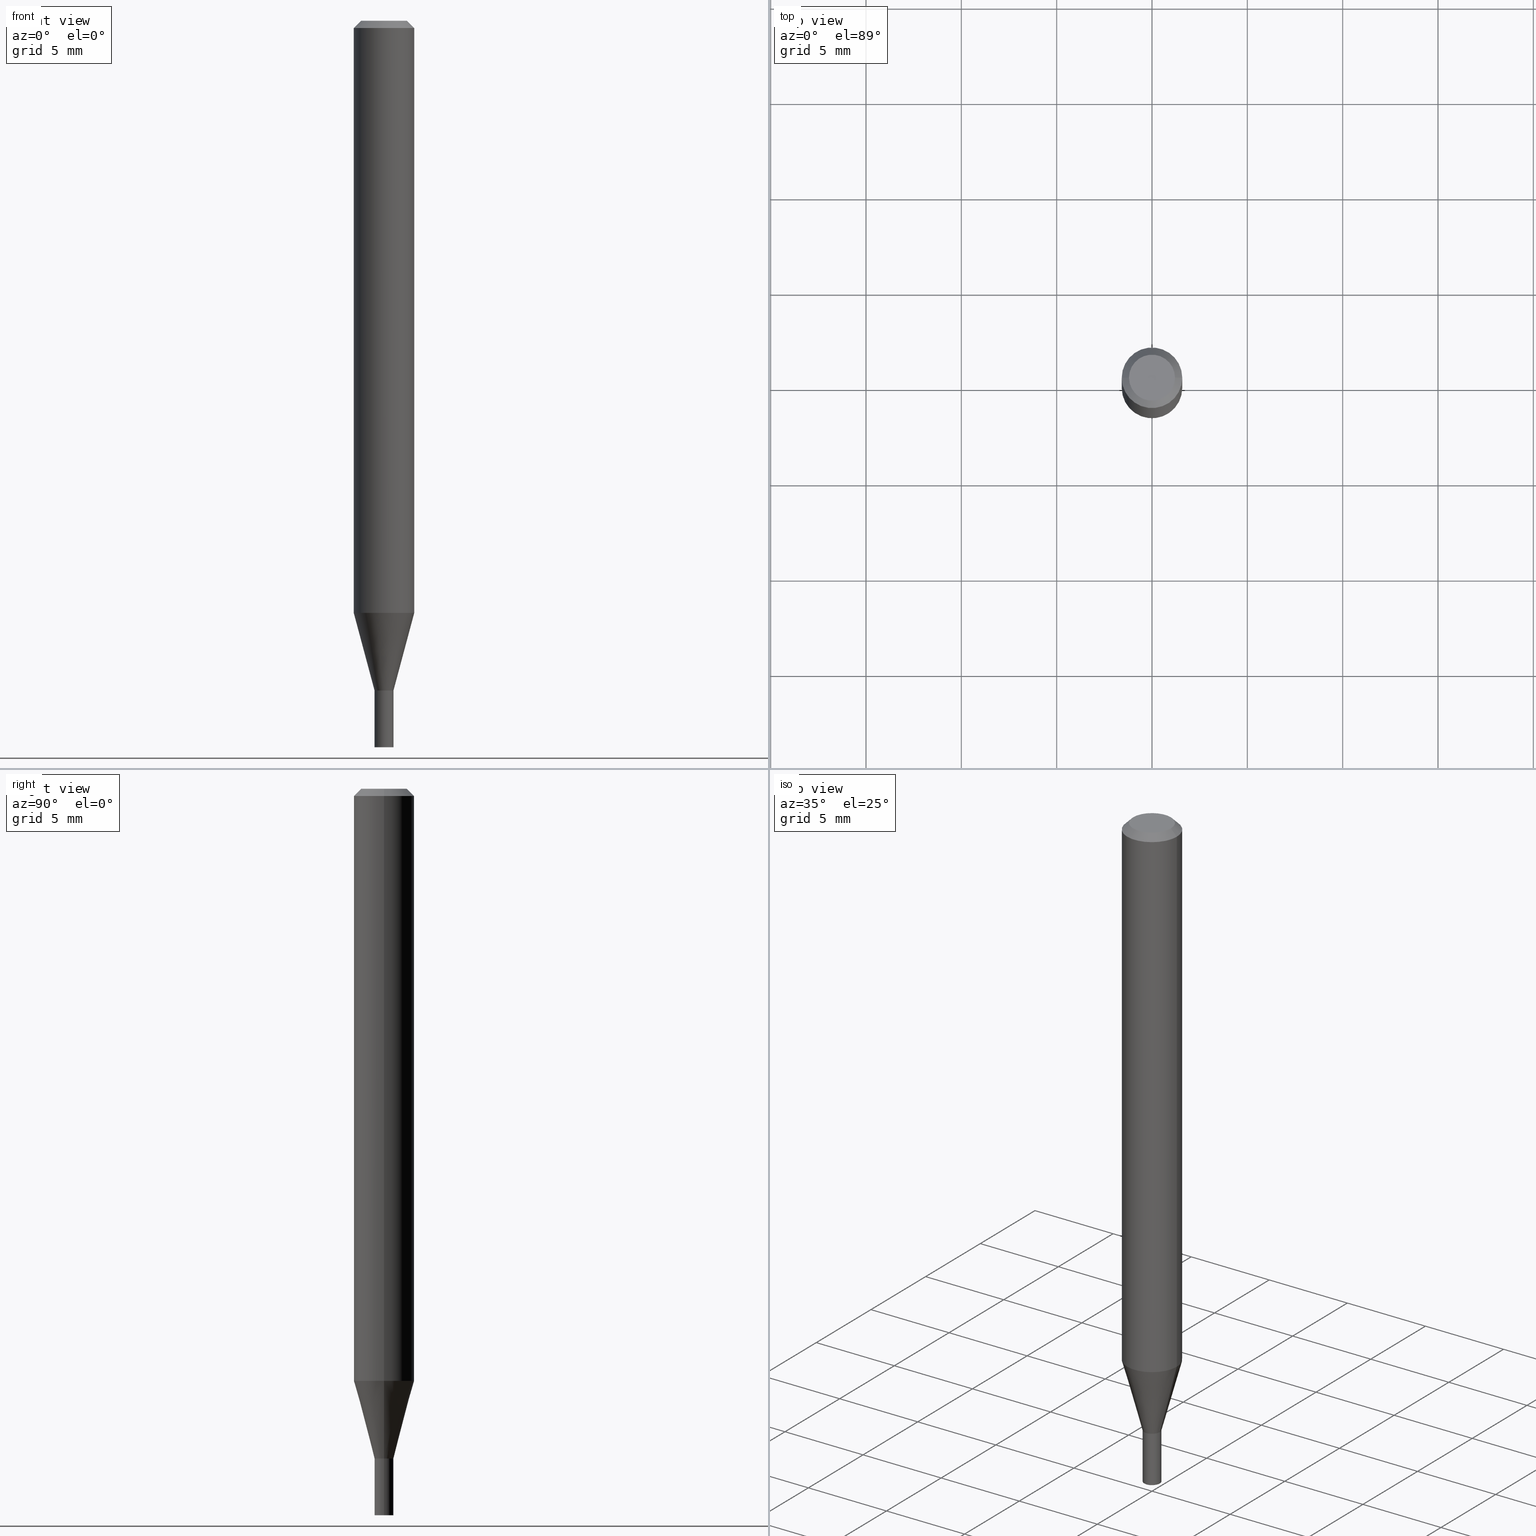
[diagram: canonical four-view strip — front | top / right | iso, engineering-drawing reading convention]
A machine part, canonical four-view strip (front | top / right | iso — engineering-drawing reading convention). The complete STEP part file that produces these views, byte-faithful:
ISO-10303-21;
HEADER;
FILE_DESCRIPTION (( 'STEP AP203' ),
    '1' );
FILE_NAME ('04145.STEP',
    '2024-03-14T17:06:09',
    ( '' ),
    ( '' ),
    'SwSTEP 2.0',
    'SolidWorks 2023',
    '' );
FILE_SCHEMA (( 'CONFIG_CONTROL_DESIGN' ));
ENDSEC;

DATA;
#1 = APPROVAL_STATUS ( 'not_yet_approved' ) ;
#2 = SECURITY_CLASSIFICATION_LEVEL ( 'unclassified' ) ;
#3 = AXIS2_PLACEMENT_3D ( 'NONE', #48, #77, #223 ) ;
#4 = APPROVAL_ROLE ( '' ) ;
#5 = PERSON_AND_ORGANIZATION_ROLE ( 'creator' ) ;
#6 = DIRECTION ( 'NONE',  ( 1.000000000000000000, -6.982962677686281699E-15, 0.000000000000000000 ) ) ;
#7 = CARTESIAN_POINT ( 'NONE',  ( 0.000000000000000000, 0.000000000000000000, 0.000000000000000000 ) ) ;
#8 = AXIS2_PLACEMENT_3D ( 'NONE', #104, #246, #282 ) ;
#9 = ORGANIZATION ( 'UNSPECIFIED', 'UNSPECIFIED', '' ) ;
#10 = VERTEX_POINT ( 'NONE', #277 ) ;
#11 = ADVANCED_FACE ( 'NONE', ( #123 ), #250, .T. ) ;
#12 = DIRECTION ( 'NONE',  ( -0.7071067811865608954, 2.468850131082397083E-15, -0.7071067811865341390 ) ) ;
#13 = ORIENTED_EDGE ( 'NONE', *, *, #430, .F. ) ;
#14 = LINE ( 'NONE', #154, #37 ) ;
#15 = DIRECTION ( 'NONE',  ( 2.445468806185136597E-29, -3.491481338843145583E-15, -1.000000000000000000 ) ) ;
#16 = EDGE_LOOP ( 'NONE', ( #156, #377, #81, #442 ) ) ;
#17 = DIRECTION ( 'NONE',  ( 1.000000000000000000, -6.982962677686265922E-15, 4.876176775795935793E-29 ) ) ;
#18 = CONICAL_SURFACE ( 'NONE', #280, 0.06250000000000000000, 0.7853981633974672638 ) ;
#19 = ORIENTED_EDGE ( 'NONE', *, *, #466, .F. ) ;
#20 = EDGE_CURVE ( 'NONE', #407, #346, #450, .T. ) ;
#21 = DIRECTION ( 'NONE',  ( -2.445468806185136597E-29, 3.491481338843145583E-15, 1.000000000000000000 ) ) ;
#22 = DIRECTION ( 'NONE',  ( -2.445468806185136597E-29, 3.491481338843145583E-15, 1.000000000000000000 ) ) ;
#23 = CARTESIAN_POINT ( 'NONE',  ( -0.01899999999999999953, -4.691066344651542575E-15, -1.383000000000000007 ) ) ;
#24 = PERSON ( 'UNSPECIFIED', 'UNSPECIFIED', 'UNSPECIFIED', ('UNSPECIFIED'), ('UNSPECIFIED'), ('UNSPECIFIED') ) ;
#25 = CARTESIAN_POINT ( 'NONE',  ( 1.380570281168130538E-44, -1.971088472471417818E-30, -5.645421759935600567E-16 ) ) ;
#26 = VECTOR ( 'NONE', #341, 39.37007874015748143 ) ;
#27 = EDGE_CURVE ( 'NONE', #346, #407, #364, .T. ) ;
#28 = CARTESIAN_POINT ( 'NONE',  ( 1.361677722149159819E-16, 0.01949999999999517050, -1.383000000000000229 ) ) ;
#29 = ORIENTED_EDGE ( 'NONE', *, *, #455, .T. ) ;
#30 = LINE ( 'NONE', #60, #462 ) ;
#31 = LENGTH_MEASURE_WITH_UNIT ( LENGTH_MEASURE( 0.02539999999999999897 ), #317 );
#32 = EDGE_CURVE ( 'NONE', #210, #366, #225, .T. ) ;
#33 = CONICAL_SURFACE ( 'NONE', #288, 0.06250000000000000000, 0.7853981633974672638 ) ;
#34 = CARTESIAN_POINT ( 'NONE',  ( -0.01899999999999999953, -4.693715571825651409E-15, -1.383000000000000007 ) ) ;
#35 = PERSON_AND_ORGANIZATION ( #24, #9 ) ;
#36 = COORDINATED_UNIVERSAL_TIME_OFFSET ( 5, 0, .BEHIND. ) ;
#37 = VECTOR ( 'NONE', #294, 39.37007874015748143 ) ;
#38 = APPROVAL ( #316, 'UNSPECIFIED' ) ;
#39 = LOCAL_TIME ( 13, 6, 9.000000000000000000, #426 ) ;
#40 = PERSON_AND_ORGANIZATION_ROLE ( 'design_supplier' ) ;
#41 = DIRECTION ( 'NONE',  ( -2.445468806185136597E-29, 3.491481338843145583E-15, 1.000000000000000000 ) ) ;
#42 = CARTESIAN_POINT ( 'NONE',  ( 0.06250000000000000000, -4.888073874380388472E-16, -0.01499999999999999944 ) ) ;
#43 = ORIENTED_EDGE ( 'NONE', *, *, #445, .F. ) ;
#44 = AXIS2_PLACEMENT_3D ( 'NONE', #449, #370, #337 ) ;
#45 = CARTESIAN_POINT ( 'NONE',  ( 0.01949999999999964956, -4.964886463834950209E-15, -1.383000000000000007 ) ) ;
#46 = APPROVAL_PERSON_ORGANIZATION ( #247, #38, #69 ) ;
#47 = ORIENTED_EDGE ( 'NONE', *, *, #465, .T. ) ;
#48 = CARTESIAN_POINT ( 'NONE',  ( 2.989638964134708324E-29, -4.268412104359694115E-15, -1.222521815274537182 ) ) ;
#49 = EDGE_LOOP ( 'NONE', ( #203, #303, #133, #195 ) ) ;
#50 = DIRECTION ( 'NONE',  ( 0.2588190451025211281, 1.565188264969622954E-15, 0.9659258262890679791 ) ) ;
#51 = ORIENTED_EDGE ( 'NONE', *, *, #204, .F. ) ;
#52 = ORIENTED_EDGE ( 'NONE', *, *, #248, .F. ) ;
#53 = DIRECTION ( 'NONE',  ( 1.000000000000000000, -6.982962677686266711E-15, 0.000000000000000000 ) ) ;
#54 = ADVANCED_FACE ( 'NONE', ( #381 ), #18, .T. ) ;
#55 = AXIS2_PLACEMENT_3D ( 'NONE', #147, #116, #196 ) ;
#56 = ORIENTED_EDGE ( 'NONE', *, *, #177, .T. ) ;
#57 = CC_DESIGN_APPROVAL ( #349, ( #122 ) ) ;
#58 = DIRECTION ( 'NONE',  ( -2.445468806185136597E-29, 3.491481338843145583E-15, 1.000000000000000000 ) ) ;
#59 = ORIENTED_EDGE ( 'NONE', *, *, #27, .T. ) ;
#60 = CARTESIAN_POINT ( 'NONE',  ( -0.06250000000000000000, 4.440892098500626162E-16, -3.074334431409316114E-30 ) ) ;
#61 = ORIENTED_EDGE ( 'NONE', *, *, #422, .F. ) ;
#62 = ADVANCED_FACE ( 'NONE', ( #301 ), #86, .F. ) ;
#63 = CARTESIAN_POINT ( 'NONE',  ( 2.989638964134708324E-29, -4.268412104359694115E-15, -1.222521815274537182 ) ) ;
#64 = ORIENTED_EDGE ( 'NONE', *, *, #138, .T. ) ;
#65 = AXIS2_PLACEMENT_3D ( 'NONE', #233, #372, #53 ) ;
#66 = CARTESIAN_POINT ( 'NONE',  ( 3.382083358954044281E-29, -4.828718691620070564E-15, -1.383000000000000007 ) ) ;
#67 = LINE ( 'NONE', #249, #395 ) ;
#68 = CARTESIAN_POINT ( 'NONE',  ( -0.01949999999999999997, -4.894414516469175106E-15, -1.383000000000000229 ) ) ;
#69 = APPROVAL_ROLE ( '' ) ;
#70 = AXIS2_PLACEMENT_3D ( 'NONE', #231, #331, #409 ) ;
#71 = DIRECTION ( 'NONE',  ( -2.445468806185136877E-29, 3.491481338843145188E-15, 1.000000000000000000 ) ) ;
#72 = CALENDAR_DATE ( 2024, 14, 3 ) ;
#73 = MECHANICAL_CONTEXT ( 'NONE', #183, 'mechanical' ) ;
#74 = AXIS2_PLACEMENT_3D ( 'NONE', #433, #330, #363 ) ;
#75 = LOCAL_TIME ( 13, 6, 9.000000000000000000, #286 ) ;
#76 = DIRECTION ( 'NONE',  ( -1.000000000000000000, 6.982962677686265922E-15, -4.876176775795935793E-29 ) ) ;
#77 = DIRECTION ( 'NONE',  ( -2.445468806185136597E-29, 3.491481338843145583E-15, 1.000000000000000000 ) ) ;
#78 = EDGE_CURVE ( 'NONE', #415, #362, #444, .T. ) ;
#79 = EDGE_LOOP ( 'NONE', ( #29, #278, #416, #135 ) ) ;
#80 = DIRECTION ( 'NONE',  ( -2.445468806185136877E-29, 3.491481338843145188E-15, 1.000000000000000000 ) ) ;
#81 = ORIENTED_EDGE ( 'NONE', *, *, #95, .T. ) ;
#82 = AXIS2_PLACEMENT_3D ( 'NONE', #438, #85, #6 ) ;
#83 = CYLINDRICAL_SURFACE ( 'NONE', #74, 0.01949999999999999997 ) ;
#84 = LOCAL_TIME ( 13, 6, 9.000000000000000000, #421 ) ;
#85 = DIRECTION ( 'NONE',  ( -2.445468806185136597E-29, 3.491481338843145583E-15, 1.000000000000000000 ) ) ;
#86 = CYLINDRICAL_SURFACE ( 'NONE', #70, 0.01949999999999964956 ) ;
#87 = ORIENTED_EDGE ( 'NONE', *, *, #20, .T. ) ;
#88 = CARTESIAN_POINT ( 'NONE',  ( -0.01949999999999964956, -4.257242876328242188E-15, -1.383000000000000007 ) ) ;
#89 = DIRECTION ( 'NONE',  ( -0.2588190451025211281, 5.211531920934547886E-15, 0.9659258262890679791 ) ) ;
#90 = CARTESIAN_POINT ( 'NONE',  ( 3.382083358954044842E-29, -4.828718691620071353E-15, -1.383000000000000229 ) ) ;
#91 = AXIS2_PLACEMENT_3D ( 'NONE', #63, #208, #243 ) ;
#92 = ORIENTED_EDGE ( 'NONE', *, *, #20, .F. ) ;
#93 = CC_DESIGN_APPROVAL ( #38, ( #180 ) ) ;
#94 = CARTESIAN_POINT ( 'NONE',  ( 1.380570281168130538E-44, -1.971088472471417818E-30, -5.645421759935600567E-16 ) ) ;
#95 = EDGE_CURVE ( 'NONE', #382, #237, #175, .T. ) ;
#96 = ORIENTED_EDGE ( 'NONE', *, *, #422, .T. ) ;
#97 = CARTESIAN_POINT ( 'NONE',  ( -0.06250000000000000000, -3.824322894509631498E-15, -1.222521815274537182 ) ) ;
#98 = ORIENTED_EDGE ( 'NONE', *, *, #276, .T. ) ;
#99 = ORIENTED_EDGE ( 'NONE', *, *, #368, .T. ) ;
#100 = FACE_OUTER_BOUND ( 'NONE', #334, .T. ) ;
#101 = CIRCLE ( 'NONE', #357, 0.04749999999999999362 ) ;
#102 = DIRECTION ( 'NONE',  ( -2.445468806185136597E-29, 3.491481338843145583E-15, 1.000000000000000000 ) ) ;
#103 = EDGE_CURVE ( 'NONE', #293, #197, #193, .T. ) ;
#104 = CARTESIAN_POINT ( 'NONE',  ( 3.380860624550952040E-29, -4.826972950950649850E-15, -1.382500000000000284 ) ) ;
#105 = DATE_AND_TIME ( #320, #75 ) ;
#106 = CARTESIAN_POINT ( 'NONE',  ( 3.668203209277705088E-31, -5.237222008264718399E-17, -0.01499999999999999944 ) ) ;
#107 = CALENDAR_DATE ( 2024, 14, 3 ) ;
#108 = AXIS2_PLACEMENT_3D ( 'NONE', #130, #274, #168 ) ;
#109 = AXIS2_PLACEMENT_3D ( 'NONE', #66, #461, #136 ) ;
#110 = VECTOR ( 'NONE', #239, 39.37007874015748143 ) ;
#111 = DATE_AND_TIME ( #107, #39 ) ;
#112 = ADVANCED_FACE ( 'NONE', ( #121 ), #260, .T. ) ;
#113 = CC_DESIGN_DATE_AND_TIME_ASSIGNMENT ( #145, #146, ( #122 ) ) ;
#114 = CIRCLE ( 'NONE', #374, 0.01949999999999964956 ) ;
#115 = APPROVAL_PERSON_ORGANIZATION ( #355, #349, #284 ) ;
#116 = DIRECTION ( 'NONE',  ( -2.445468806185136597E-29, 3.491481338843145583E-15, 1.000000000000000000 ) ) ;
#117 = CARTESIAN_POINT ( 'NONE',  ( -0.01949999999999964956, -4.688417117477432951E-15, -1.382500000000000284 ) ) ;
#118 = ORIENTED_EDGE ( 'NONE', *, *, #32, .T. ) ;
#119 = CARTESIAN_POINT ( 'NONE',  ( 3.576687321579069994E-29, -5.368277968210015545E-15, -1.500000000000000222 ) ) ;
#120 = ORIENTED_EDGE ( 'NONE', *, *, #27, .F. ) ;
#121 = FACE_OUTER_BOUND ( 'NONE', #327, .T. ) ;
#122 = SECURITY_CLASSIFICATION ( '', '', #2 ) ;
#123 = FACE_OUTER_BOUND ( 'NONE', #16, .T. ) ;
#124 = ORIENTED_EDGE ( 'NONE', *, *, #430, .T. ) ;
#125 = DIRECTION ( 'NONE',  ( 1.000000000000000000, -6.982962677686265922E-15, 4.876176775795935793E-29 ) ) ;
#126 = CARTESIAN_POINT ( 'NONE',  ( -0.01949999999999964956, -4.690162858146853666E-15, -1.383000000000000007 ) ) ;
#127 = CARTESIAN_POINT ( 'NONE',  ( 3.668203209277705088E-31, -5.237222008264718399E-17, -0.01499999999999999944 ) ) ;
#128 = ADVANCED_FACE ( 'NONE', ( #398 ), #259, .T. ) ;
#129 = DIRECTION ( 'NONE',  ( 1.000000000000000000, -6.982962677686266711E-15, 4.876176775795935793E-29 ) ) ;
#130 = CARTESIAN_POINT ( 'NONE',  ( 3.668203209277704895E-29, -5.237222008264718177E-15, -1.500000000000000222 ) ) ;
#131 = CARTESIAN_POINT ( 'NONE',  ( 0.01949999999999964956, -4.964886463834950209E-15, -1.383000000000000007 ) ) ;
#132 = ORIENTED_EDGE ( 'NONE', *, *, #340, .T. ) ;
#133 = ORIENTED_EDGE ( 'NONE', *, *, #103, .T. ) ;
#134 = DIRECTION ( 'NONE',  ( -2.445468806185136597E-29, 3.491481338843145583E-15, 1.000000000000000000 ) ) ;
#135 = ORIENTED_EDGE ( 'NONE', *, *, #103, .F. ) ;
#136 = DIRECTION ( 'NONE',  ( 1.000000000000000000, -6.982962677686281699E-15, 0.000000000000000000 ) ) ;
#137 = CIRCLE ( 'NONE', #432, 0.01949999999999999997 ) ;
#138 = EDGE_CURVE ( 'NONE', #346, #456, #405, .T. ) ;
#139 = PERSON_AND_ORGANIZATION ( #24, #9 ) ;
#140 = DIRECTION ( 'NONE',  ( -0.7071067811865642261, 7.493145998870414114E-15, 0.7071067811865309194 ) ) ;
#141 = APPROVAL_STATUS ( 'not_yet_approved' ) ;
#142 = ADVANCED_FACE ( 'NONE', ( #287 ), #359, .F. ) ;
#143 = PERSON_AND_ORGANIZATION_ROLE ( 'creator' ) ;
#144 = CONICAL_SURFACE ( 'NONE', #109, 0.01899999999999999953, 0.7853981633974718157 ) ;
#145 = DATE_AND_TIME ( #318, #201 ) ;
#146 = DATE_TIME_ROLE ( 'classification_date' ) ;
#147 = CARTESIAN_POINT ( 'NONE',  ( 3.382083358954044281E-29, -4.828718691620070564E-15, -1.383000000000000007 ) ) ;
#148 = AXIS2_PLACEMENT_3D ( 'NONE', #28, #171, #174 ) ;
#149 = DIRECTION ( 'NONE',  ( 2.438088387897960049E-29, -3.491481338843145188E-15, -1.000000000000000000 ) ) ;
#150 = APPLICATION_CONTEXT ( 'configuration controlled 3d designs of mechanical parts and assemblies' ) ;
#151 = EDGE_LOOP ( 'NONE', ( #222, #434, #413, #124 ) ) ;
#152 = CARTESIAN_POINT ( 'NONE',  ( 0.06250000000000000000, -4.704847271715086573E-15, -1.222521815274537182 ) ) ;
#153 = EDGE_LOOP ( 'NONE', ( #437, #99, #241, #19 ) ) ;
#154 = CARTESIAN_POINT ( 'NONE',  ( 0.06250000000000000000, -4.811533449433679005E-16, -0.01499999999999999944 ) ) ;
#155 = CC_DESIGN_PERSON_AND_ORGANIZATION_ASSIGNMENT ( #464, #181, ( #122 ) ) ;
#156 = ORIENTED_EDGE ( 'NONE', *, *, #465, .F. ) ;
#157 = EDGE_LOOP ( 'NONE', ( #92, #120 ) ) ;
#158 = VECTOR ( 'NONE', #431, 39.37007874015748143 ) ;
#159 = DIRECTION ( 'NONE',  ( -2.445468806185136597E-29, 3.491481338843145583E-15, 1.000000000000000000 ) ) ;
#160 = DIRECTION ( 'NONE',  ( -2.445468806185136597E-29, 3.491481338843145583E-15, 1.000000000000000000 ) ) ;
#161 = DIRECTION ( 'NONE',  ( 1.000000000000000000, -6.982962677686284065E-15, 0.000000000000000000 ) ) ;
#162 = ORIENTED_EDGE ( 'NONE', *, *, #261, .T. ) ;
#163 = ADVANCED_FACE ( 'NONE', ( #325 ), #258, .T. ) ;
#164 = CARTESIAN_POINT ( 'NONE',  ( -0.01949999999999999997, -4.894414516469175106E-15, -1.500000000000000222 ) ) ;
#165 = EDGE_LOOP ( 'NONE', ( #87, #64, #399, #52 ) ) ;
#166 = CARTESIAN_POINT ( 'NONE',  ( 0.01949999999999999997, -4.964886463834953365E-15, -1.383000000000000229 ) ) ;
#167 = AXIS2_PLACEMENT_3D ( 'NONE', #324, #290, #125 ) ;
#168 = DIRECTION ( 'NONE',  ( 1.000000000000000000, -6.982962677686258033E-15, 0.000000000000000000 ) ) ;
#169 = ORIENTED_EDGE ( 'NONE', *, *, #276, .F. ) ;
#170 = AXIS2_PLACEMENT_3D ( 'NONE', #386, #390, #350 ) ;
#171 = DIRECTION ( 'NONE',  ( 2.438088387897960049E-29, -3.491481338843145188E-15, -1.000000000000000000 ) ) ;
#172 = ADVANCED_FACE ( 'NONE', ( #230 ), #369, .F. ) ;
#173 = ORIENTED_EDGE ( 'NONE', *, *, #466, .T. ) ;
#174 = DIRECTION ( 'NONE',  ( -1.000000000000000000, 6.982962677686265922E-15, -4.876176775795935793E-29 ) ) ;
#175 = LINE ( 'NONE', #185, #158 ) ;
#176 = CARTESIAN_POINT ( 'NONE',  ( 0.000000000000000000, 0.000000000000000000, 0.000000000000000000 ) ) ;
#177 = EDGE_CURVE ( 'NONE', #197, #362, #344, .T. ) ;
#178 = APPLICATION_PROTOCOL_DEFINITION ( 'international standard', 'config_control_design', 1994, #150 ) ;
#179 = PERSON_AND_ORGANIZATION ( #24, #9 ) ;
#180 = PRODUCT_DEFINITION_FORMATION_WITH_SPECIFIED_SOURCE ( 'ANY', '', #295, .NOT_KNOWN. ) ;
#181 = PERSON_AND_ORGANIZATION_ROLE ( 'classification_officer' ) ;
#182 = DIRECTION ( 'NONE',  ( -2.445468806185136877E-29, 3.491481338843145188E-15, 1.000000000000000000 ) ) ;
#183 = APPLICATION_CONTEXT ( 'configuration controlled 3d designs of mechanical parts and assemblies' ) ;
#184 = EDGE_CURVE ( 'NONE', #415, #293, #114, .T. ) ;
#185 = CARTESIAN_POINT ( 'NONE',  ( 0.01899999999999999953, -4.961394982496109569E-15, -1.383000000000000007 ) ) ;
#186 = VERTEX_POINT ( 'NONE', #42 ) ;
#187 = CIRCLE ( 'NONE', #199, 0.01949999999999999997 ) ;
#188 = ADVANCED_FACE ( 'NONE', ( #300 ), #83, .T. ) ;
#189 = CC_DESIGN_APPROVAL ( #256, ( #307 ) ) ;
#190 = CARTESIAN_POINT ( 'NONE',  ( -0.06250000000000000000, 3.840629472727444916E-16, -0.01499999999999999944 ) ) ;
#191 = VERTEX_POINT ( 'NONE', #117 ) ;
#192 = EDGE_CURVE ( 'NONE', #210, #10, #270, .T. ) ;
#193 = LINE ( 'NONE', #45, #326 ) ;
#194 = DIRECTION ( 'NONE',  ( -1.000000000000000000, 6.982962677686266711E-15, 0.000000000000000000 ) ) ;
#195 = ORIENTED_EDGE ( 'NONE', *, *, #388, .F. ) ;
#196 = DIRECTION ( 'NONE',  ( 1.000000000000000000, -6.982962677686284065E-15, 0.000000000000000000 ) ) ;
#197 = VERTEX_POINT ( 'NONE', #152 ) ;
#198 = ORIENTED_EDGE ( 'NONE', *, *, #204, .T. ) ;
#199 = AXIS2_PLACEMENT_3D ( 'NONE', #90, #235, #457 ) ;
#200 = DIRECTION ( 'NONE',  ( 1.000000000000000000, -6.982962677686284065E-15, 0.000000000000000000 ) ) ;
#201 = LOCAL_TIME ( 13, 6, 9.000000000000000000, #423 ) ;
#202 = ADVANCED_FACE ( 'NONE', ( #292 ), #435, .F. ) ;
#203 = ORIENTED_EDGE ( 'NONE', *, *, #78, .F. ) ;
#204 = EDGE_CURVE ( 'NONE', #197, #186, #400, .T. ) ;
#205 = CARTESIAN_POINT ( 'NONE',  ( 3.382083358954044842E-29, -4.828718691620071353E-15, -1.383000000000000229 ) ) ;
#206 = DIRECTION ( 'NONE',  ( 1.000000000000000000, -6.982962677686258033E-15, 0.000000000000000000 ) ) ;
#207 = ORIENTED_EDGE ( 'NONE', *, *, #458, .T. ) ;
#208 = DIRECTION ( 'NONE',  ( -2.445468806185136597E-29, 3.491481338843145583E-15, 1.000000000000000000 ) ) ;
#209 = APPROVAL_PERSON_ORGANIZATION ( #214, #256, #4 ) ;
#210 = VERTEX_POINT ( 'NONE', #367 ) ;
#211 = FACE_OUTER_BOUND ( 'NONE', #296, .T. ) ;
#212 = DIRECTION ( 'NONE',  ( 1.000000000000000000, -6.982962677686281699E-15, 0.000000000000000000 ) ) ;
#213 = CARTESIAN_POINT ( 'NONE',  ( 3.382083358954044281E-29, -4.828718691620070564E-15, -1.383000000000000007 ) ) ;
#214 = PERSON_AND_ORGANIZATION ( #24, #9 ) ;
#215 = CIRCLE ( 'NONE', #8, 0.01949999999999964956 ) ;
#216 =( CONVERSION_BASED_UNIT ( 'INCH', #31 ) LENGTH_UNIT ( ) NAMED_UNIT ( #264 ) );
#217 = APPROVAL_DATE_TIME ( #323, #256 ) ;
#218 = APPROVAL_DATE_TIME ( #105, #38 ) ;
#219 = EDGE_CURVE ( 'NONE', #366, #186, #14, .T. ) ;
#220 = DIRECTION ( 'NONE',  ( 1.000000000000000000, -6.982962677686265922E-15, 4.876176775795935793E-29 ) ) ;
#221 = DIRECTION ( 'NONE',  ( 1.000000000000000000, -6.982962677686266711E-15, 4.876176775795935793E-29 ) ) ;
#222 = ORIENTED_EDGE ( 'NONE', *, *, #219, .F. ) ;
#223 = DIRECTION ( 'NONE',  ( 1.000000000000000000, -6.982962677686262766E-15, 0.000000000000000000 ) ) ;
#224 = EDGE_CURVE ( 'NONE', #266, #382, #418, .T. ) ;
#225 = CIRCLE ( 'NONE', #401, 0.04749999999999999362 ) ;
#226 = VECTOR ( 'NONE', #182, 39.37007874015748143 ) ;
#227 = EDGE_LOOP ( 'NONE', ( #118, #98 ) ) ;
#228 = CARTESIAN_POINT ( 'NONE',  ( 0.06250000000000000000, -4.364351673553916694E-16, 3.047610484872459871E-30 ) ) ;
#229 = EDGE_LOOP ( 'NONE', ( #207, #47, #43, #404 ) ) ;
#230 = FACE_OUTER_BOUND ( 'NONE', #313, .T. ) ;
#231 = CARTESIAN_POINT ( 'NONE',  ( 0.000000000000000000, 0.000000000000000000, 0.000000000000000000 ) ) ;
#232 = EDGE_LOOP ( 'NONE', ( #162, #397 ) ) ;
#233 = CARTESIAN_POINT ( 'NONE',  ( 3.668203209277705088E-31, -5.237222008264718399E-17, -0.01499999999999999944 ) ) ;
#234 = AXIS2_PLACEMENT_3D ( 'NONE', #414, #21, #161 ) ;
#235 = DIRECTION ( 'NONE',  ( -2.445468806185136597E-29, 3.491481338843145583E-15, 1.000000000000000000 ) ) ;
#236 = DIRECTION ( 'NONE',  ( -1.000000000000000000, 6.982962677686266711E-15, 0.000000000000000000 ) ) ;
#237 = VERTEX_POINT ( 'NONE', #412 ) ;
#238 = ADVANCED_FACE ( 'NONE', ( #100 ), #312, .T. ) ;
#239 = DIRECTION ( 'NONE',  ( -2.445468806185136877E-29, 3.491481338843145188E-15, 1.000000000000000000 ) ) ;
#240 = DIRECTION ( 'NONE',  ( -2.445468806185136597E-29, 3.491481338843145583E-15, 1.000000000000000000 ) ) ;
#241 = ORIENTED_EDGE ( 'NONE', *, *, #281, .T. ) ;
#242 = CC_DESIGN_PERSON_AND_ORGANIZATION_ASSIGNMENT ( #35, #40, ( #180 ) ) ;
#243 = DIRECTION ( 'NONE',  ( 1.000000000000000000, -6.982962677686262766E-15, 0.000000000000000000 ) ) ;
#244 = AXIS2_PLACEMENT_3D ( 'NONE', #267, #41, #17 ) ;
#245 = VECTOR ( 'NONE', #140, 39.37007874015748143 ) ;
#246 = DIRECTION ( 'NONE',  ( -2.445468806185136597E-29, 3.491481338843145583E-15, 1.000000000000000000 ) ) ;
#247 = PERSON_AND_ORGANIZATION ( #24, #9 ) ;
#248 = EDGE_CURVE ( 'NONE', #407, #268, #302, .T. ) ;
#249 = CARTESIAN_POINT ( 'NONE',  ( 0.01949999999999964956, -1.361677722148797436E-16, 9.508544712801902997E-31 ) ) ;
#250 = CONICAL_SURFACE ( 'NONE', #44, 0.01899999999999999953, 0.7853981633974718157 ) ;
#251 = DIRECTION ( 'NONE',  ( 0.000000000000000000, 0.000000000000000000, 1.000000000000000000 ) ) ;
#252 = AXIS2_PLACEMENT_3D ( 'NONE', #375, #22, #446 ) ;
#253 =( GEOMETRIC_REPRESENTATION_CONTEXT ( 3 ) GLOBAL_UNCERTAINTY_ASSIGNED_CONTEXT ( ( #257 ) ) GLOBAL_UNIT_ASSIGNED_CONTEXT ( ( #216, #352, #419 ) ) REPRESENTATION_CONTEXT ( 'NONE', 'WORKASPACE' ) );
#254 = SHAPE_DEFINITION_REPRESENTATION ( #427, #339 ) ;
#255 = CALENDAR_DATE ( 2024, 14, 3 ) ;
#256 = APPROVAL ( #141, 'UNSPECIFIED' ) ;
#257 = UNCERTAINTY_MEASURE_WITH_UNIT (LENGTH_MEASURE( 1.000000000000000082E-05 ), #216, 'distance_accuracy_value', 'NONE');
#258 = CONICAL_SURFACE ( 'NONE', #55, 0.01949999999999964956, 0.2617993877991498519 ) ;
#259 = CYLINDRICAL_SURFACE ( 'NONE', #272, 0.06250000000000000000 ) ;
#260 = CYLINDRICAL_SURFACE ( 'NONE', #244, 0.01949999999999999997 ) ;
#261 = EDGE_CURVE ( 'NONE', #268, #456, #137, .T. ) ;
#262 = ORIENTED_EDGE ( 'NONE', *, *, #340, .F. ) ;
#263 = DIRECTION ( 'NONE',  ( -2.438088387897960049E-29, 3.491481338843145188E-15, 1.000000000000000000 ) ) ;
#264 = DIMENSIONAL_EXPONENTS ( 1.000000000000000000, 0.000000000000000000, 0.000000000000000000, 0.000000000000000000, 0.000000000000000000, 0.000000000000000000, 0.000000000000000000 ) ;
#265 = CIRCLE ( 'NONE', #65, 0.06250000000000000000 ) ;
#266 = VERTEX_POINT ( 'NONE', #23 ) ;
#267 = CARTESIAN_POINT ( 'NONE',  ( 0.000000000000000000, 0.000000000000000000, 0.000000000000000000 ) ) ;
#268 = VERTEX_POINT ( 'NONE', #166 ) ;
#269 = ORIENTED_EDGE ( 'NONE', *, *, #138, .F. ) ;
#270 = LINE ( 'NONE', #190, #439 ) ;
#271 = CARTESIAN_POINT ( 'NONE',  ( -0.01949999999999964956, 1.385558334732170462E-16, -9.591923425996893733E-31 ) ) ;
#272 = AXIS2_PLACEMENT_3D ( 'NONE', #7, #159, #221 ) ;
#273 = DIRECTION ( 'NONE',  ( -2.445468806185136597E-29, 3.491481338843145583E-15, 1.000000000000000000 ) ) ;
#274 = DIRECTION ( 'NONE',  ( -2.445468806185136597E-29, 3.491481338843145583E-15, 1.000000000000000000 ) ) ;
#275 = FACE_OUTER_BOUND ( 'NONE', #49, .T. ) ;
#276 = EDGE_CURVE ( 'NONE', #366, #210, #101, .T. ) ;
#277 = CARTESIAN_POINT ( 'NONE',  ( -0.06250000000000000000, -1.716302952371107981E-15, -0.01499999999999999944 ) ) ;
#278 = ORIENTED_EDGE ( 'NONE', *, *, #78, .T. ) ;
#279 = DIRECTION ( 'NONE',  ( -2.445468806185136877E-29, 3.491481338843145188E-15, 1.000000000000000000 ) ) ;
#280 = AXIS2_PLACEMENT_3D ( 'NONE', #406, #15, #194 ) ;
#281 = EDGE_CURVE ( 'NONE', #191, #237, #394, .T. ) ;
#282 = DIRECTION ( 'NONE',  ( 1.000000000000000000, -6.982962677686284065E-15, 0.000000000000000000 ) ) ;
#283 = EDGE_CURVE ( 'NONE', #456, #268, #187, .T. ) ;
#284 = APPROVAL_ROLE ( '' ) ;
#285 = ORIENTED_EDGE ( 'NONE', *, *, #283, .F. ) ;
#286 = COORDINATED_UNIVERSAL_TIME_OFFSET ( 5, 0, .BEHIND. ) ;
#287 = FACE_OUTER_BOUND ( 'NONE', #227, .T. ) ;
#288 = AXIS2_PLACEMENT_3D ( 'NONE', #127, #448, #236 ) ;
#289 = PRODUCT_RELATED_PRODUCT_CATEGORY ( 'detail', '', ( #295 ) ) ;
#290 = DIRECTION ( 'NONE',  ( -2.438088387897960049E-29, 3.491481338843145188E-15, 1.000000000000000000 ) ) ;
#291 = ORIENTED_EDGE ( 'NONE', *, *, #458, .F. ) ;
#292 = FACE_OUTER_BOUND ( 'NONE', #157, .T. ) ;
#293 = VERTEX_POINT ( 'NONE', #131 ) ;
#294 = DIRECTION ( 'NONE',  ( 0.7071067811865608954, -7.319954787623300222E-15, -0.7071067811865341390 ) ) ;
#295 = PRODUCT ( '04145', '04145', '', ( #73 ) ) ;
#296 = EDGE_LOOP ( 'NONE', ( #298, #343, #173, #440 ) ) ;
#297 = AXIS2_PLACEMENT_3D ( 'NONE', #309, #134, #129 ) ;
#298 = ORIENTED_EDGE ( 'NONE', *, *, #368, .F. ) ;
#299 = ADVANCED_FACE ( 'NONE', ( #211 ), #347, .F. ) ;
#300 = FACE_OUTER_BOUND ( 'NONE', #165, .T. ) ;
#301 = FACE_OUTER_BOUND ( 'NONE', #153, .T. ) ;
#302 = LINE ( 'NONE', #410, #26 ) ;
#303 = ORIENTED_EDGE ( 'NONE', *, *, #184, .T. ) ;
#304 = FACE_OUTER_BOUND ( 'NONE', #371, .T. ) ;
#305 = ORIENTED_EDGE ( 'NONE', *, *, #219, .T. ) ;
#306 = CIRCLE ( 'NONE', #91, 0.06250000000000000000 ) ;
#307 = PRODUCT_DEFINITION ( 'UNKNOWN', '', #180, #319 ) ;
#308 = CONICAL_SURFACE ( 'NONE', #234, 0.01949999999999964956, 0.2617993877991498519 ) ;
#309 = CARTESIAN_POINT ( 'NONE',  ( 0.000000000000000000, 0.000000000000000000, 0.000000000000000000 ) ) ;
#310 = DIRECTION ( 'NONE',  ( 1.000000000000000000, -6.982962677686267499E-15, 4.852736867747366768E-29 ) ) ;
#311 = ORIENTED_EDGE ( 'NONE', *, *, #248, .T. ) ;
#312 = CYLINDRICAL_SURFACE ( 'NONE', #297, 0.06250000000000000000 ) ;
#313 = EDGE_LOOP ( 'NONE', ( #291, #459 ) ) ;
#314 = LINE ( 'NONE', #271, #110 ) ;
#315 = VECTOR ( 'NONE', #80, 39.37007874015748143 ) ;
#316 = APPROVAL_STATUS ( 'not_yet_approved' ) ;
#317 =( LENGTH_UNIT ( ) NAMED_UNIT ( * ) SI_UNIT ( $, .METRE. ) );
#318 = CALENDAR_DATE ( 2024, 14, 3 ) ;
#319 = DESIGN_CONTEXT ( 'detailed design', #150, 'design' ) ;
#320 = CALENDAR_DATE ( 2024, 14, 3 ) ;
#321 = CC_DESIGN_PERSON_AND_ORGANIZATION_ASSIGNMENT ( #351, #5, ( #180 ) ) ;
#322 = CIRCLE ( 'NONE', #411, 0.06250000000000000000 ) ;
#323 = DATE_AND_TIME ( #72, #358 ) ;
#324 = CARTESIAN_POINT ( 'NONE',  ( 3.382083358954044281E-29, -4.828718691620070564E-15, -1.383000000000000007 ) ) ;
#325 = FACE_OUTER_BOUND ( 'NONE', #79, .T. ) ;
#326 = VECTOR ( 'NONE', #50, 39.37007874015748854 ) ;
#327 = EDGE_LOOP ( 'NONE', ( #269, #59, #311, #285 ) ) ;
#328 = CARTESIAN_POINT ( 'NONE',  ( -0.01949999999999999997, 1.385558334732195360E-16, -9.591923425997065392E-31 ) ) ;
#329 = ORIENTED_EDGE ( 'NONE', *, *, #192, .F. ) ;
#330 = DIRECTION ( 'NONE',  ( -2.445468806185136597E-29, 3.491481338843145583E-15, 1.000000000000000000 ) ) ;
#331 = DIRECTION ( 'NONE',  ( -2.445468806185136597E-29, 3.491481338843145583E-15, 1.000000000000000000 ) ) ;
#332 = DIRECTION ( 'NONE',  ( 1.000000000000000000, -6.982962677686284065E-15, 0.000000000000000000 ) ) ;
#333 = ADVANCED_FACE ( 'NONE', ( #275 ), #308, .T. ) ;
#334 = EDGE_LOOP ( 'NONE', ( #56, #132, #61, #51 ) ) ;
#335 = CC_DESIGN_SECURITY_CLASSIFICATION ( #122, ( #180 ) ) ;
#336 = PLANE ( 'NONE',  #148 ) ;
#337 = DIRECTION ( 'NONE',  ( 1.000000000000000000, -6.982962677686281699E-15, 0.000000000000000000 ) ) ;
#338 = DIRECTION ( 'NONE',  ( 1.000000000000000000, -6.982962677686267499E-15, 4.852736867747366768E-29 ) ) ;
#339 = ADVANCED_BREP_SHAPE_REPRESENTATION ( '04145', ( #441, #460, #403 ), #253 ) ;
#340 = EDGE_CURVE ( 'NONE', #362, #10, #30, .T. ) ;
#341 = DIRECTION ( 'NONE',  ( -2.445468806185136877E-29, 3.491481338843145188E-15, 1.000000000000000000 ) ) ;
#342 = DIRECTION ( 'NONE',  ( 1.000000000000000000, -6.982962677686258033E-15, 0.000000000000000000 ) ) ;
#343 = ORIENTED_EDGE ( 'NONE', *, *, #455, .F. ) ;
#344 = CIRCLE ( 'NONE', #3, 0.06250000000000000000 ) ;
#345 = FACE_OUTER_BOUND ( 'NONE', #232, .T. ) ;
#346 = VERTEX_POINT ( 'NONE', #164 ) ;
#347 = CYLINDRICAL_SURFACE ( 'NONE', #252, 0.01949999999999964956 ) ;
#348 = LINE ( 'NONE', #34, #245 ) ;
#349 = APPROVAL ( #1, 'UNSPECIFIED' ) ;
#350 = DIRECTION ( 'NONE',  ( 1.000000000000000000, -6.982962677686284065E-15, 0.000000000000000000 ) ) ;
#351 = PERSON_AND_ORGANIZATION ( #24, #9 ) ;
#352 =( NAMED_UNIT ( * ) PLANE_ANGLE_UNIT ( ) SI_UNIT ( $, .RADIAN. ) );
#353 = APPLICATION_PROTOCOL_DEFINITION ( 'international standard', 'config_control_design', 1994, #183 ) ;
#354 = CC_DESIGN_DATE_AND_TIME_ASSIGNMENT ( #387, #356, ( #307 ) ) ;
#355 = PERSON_AND_ORGANIZATION ( #24, #9 ) ;
#356 = DATE_TIME_ROLE ( 'creation_date' ) ;
#357 = AXIS2_PLACEMENT_3D ( 'NONE', #94, #453, #338 ) ;
#358 = LOCAL_TIME ( 13, 6, 9.000000000000000000, #36 ) ;
#359 = PLANE ( 'NONE',  #365 ) ;
#360 = ADVANCED_FACE ( 'NONE', ( #304 ), #33, .T. ) ;
#361 = DIRECTION ( 'NONE',  ( -2.445468806185136597E-29, 3.491481338843145583E-15, 1.000000000000000000 ) ) ;
#362 = VERTEX_POINT ( 'NONE', #97 ) ;
#363 = DIRECTION ( 'NONE',  ( 1.000000000000000000, -6.982962677686265922E-15, 4.876176775795935793E-29 ) ) ;
#364 = CIRCLE ( 'NONE', #424, 0.01949999999999999997 ) ;
#365 = AXIS2_PLACEMENT_3D ( 'NONE', #443, #149, #76 ) ;
#366 = VERTEX_POINT ( 'NONE', #417 ) ;
#367 = CARTESIAN_POINT ( 'NONE',  ( -0.04749999999999999362, 3.578768372314200645E-16, -5.645421759935625219E-16 ) ) ;
#368 = EDGE_CURVE ( 'NONE', #415, #191, #314, .T. ) ;
#369 = PLANE ( 'NONE',  #167 ) ;
#370 = DIRECTION ( 'NONE',  ( -2.445468806185136597E-29, 3.491481338843145583E-15, 1.000000000000000000 ) ) ;
#371 = EDGE_LOOP ( 'NONE', ( #169, #305, #96, #329 ) ) ;
#372 = DIRECTION ( 'NONE',  ( -2.445468806185136597E-29, 3.491481338843145583E-15, 1.000000000000000000 ) ) ;
#373 = CLOSED_SHELL ( 'NONE', ( #188, #202, #112, #392 ) ) ;
#374 = AXIS2_PLACEMENT_3D ( 'NONE', #396, #361, #332 ) ;
#375 = CARTESIAN_POINT ( 'NONE',  ( 0.000000000000000000, 0.000000000000000000, 0.000000000000000000 ) ) ;
#376 = CC_DESIGN_PERSON_AND_ORGANIZATION_ASSIGNMENT ( #179, #428, ( #295 ) ) ;
#377 = ORIENTED_EDGE ( 'NONE', *, *, #224, .T. ) ;
#378 = CARTESIAN_POINT ( 'NONE',  ( 3.380860624550952040E-29, -4.826972950950649850E-15, -1.382500000000000284 ) ) ;
#379 = CARTESIAN_POINT ( 'NONE',  ( 3.668203209277704895E-29, -5.237222008264718177E-15, -1.500000000000000222 ) ) ;
#380 = CARTESIAN_POINT ( 'NONE',  ( 0.01899999999999999953, -4.961394982496109569E-15, -1.383000000000000007 ) ) ;
#381 = FACE_OUTER_BOUND ( 'NONE', #151, .T. ) ;
#382 = VERTEX_POINT ( 'NONE', #380 ) ;
#383 = VECTOR ( 'NONE', #89, 39.37007874015748854 ) ;
#384 = FACE_OUTER_BOUND ( 'NONE', #229, .T. ) ;
#385 = DIRECTION ( 'NONE',  ( -2.445468806185136597E-29, 3.491481338843145583E-15, 1.000000000000000000 ) ) ;
#386 = CARTESIAN_POINT ( 'NONE',  ( 3.382083358954044281E-29, -4.828718691620070564E-15, -1.383000000000000007 ) ) ;
#387 = DATE_AND_TIME ( #255, #84 ) ;
#388 = EDGE_CURVE ( 'NONE', #362, #197, #306, .T. ) ;
#389 = CLOSED_SHELL ( 'NONE', ( #62, #402, #360, #238, #163, #333, #128, #54, #142, #172, #11, #299 ) ) ;
#390 = DIRECTION ( 'NONE',  ( -2.445468806185136597E-29, 3.491481338843145583E-15, 1.000000000000000000 ) ) ;
#391 = AXIS2_PLACEMENT_3D ( 'NONE', #119, #263, #220 ) ;
#392 = ADVANCED_FACE ( 'NONE', ( #345 ), #336, .F. ) ;
#393 = DIRECTION ( 'NONE',  ( 1.000000000000000000, 0.000000000000000000, 0.000000000000000000 ) ) ;
#394 = CIRCLE ( 'NONE', #451, 0.01949999999999964956 ) ;
#395 = VECTOR ( 'NONE', #71, 39.37007874015748143 ) ;
#396 = CARTESIAN_POINT ( 'NONE',  ( 3.382083358954044281E-29, -4.828718691620070564E-15, -1.383000000000000007 ) ) ;
#397 = ORIENTED_EDGE ( 'NONE', *, *, #283, .T. ) ;
#398 = FACE_OUTER_BOUND ( 'NONE', #447, .T. ) ;
#399 = ORIENTED_EDGE ( 'NONE', *, *, #261, .F. ) ;
#400 = LINE ( 'NONE', #228, #226 ) ;
#401 = AXIS2_PLACEMENT_3D ( 'NONE', #25, #240, #310 ) ;
#402 = ADVANCED_FACE ( 'NONE', ( #384 ), #144, .T. ) ;
#403 = AXIS2_PLACEMENT_3D ( 'NONE', #176, #251, #393 ) ;
#404 = ORIENTED_EDGE ( 'NONE', *, *, #95, .F. ) ;
#405 = LINE ( 'NONE', #328, #315 ) ;
#406 = CARTESIAN_POINT ( 'NONE',  ( 3.668203209277705088E-31, -5.237222008264718399E-17, -0.01499999999999999944 ) ) ;
#407 = VERTEX_POINT ( 'NONE', #408 ) ;
#408 = CARTESIAN_POINT ( 'NONE',  ( 0.01949999999999999997, -5.373389780479600977E-15, -1.500000000000000222 ) ) ;
#409 = DIRECTION ( 'NONE',  ( 1.000000000000000000, -6.982962677686265922E-15, 4.876176775795935232E-29 ) ) ;
#410 = CARTESIAN_POINT ( 'NONE',  ( 0.01949999999999999997, -1.361677722148821841E-16, 9.508544712802074656E-31 ) ) ;
#411 = AXIS2_PLACEMENT_3D ( 'NONE', #106, #385, #420 ) ;
#412 = CARTESIAN_POINT ( 'NONE',  ( 0.01949999999999964956, -4.963140723165530284E-15, -1.382500000000000284 ) ) ;
#413 = ORIENTED_EDGE ( 'NONE', *, *, #192, .T. ) ;
#414 = CARTESIAN_POINT ( 'NONE',  ( 3.382083358954044281E-29, -4.828718691620070564E-15, -1.383000000000000007 ) ) ;
#415 = VERTEX_POINT ( 'NONE', #88 ) ;
#416 = ORIENTED_EDGE ( 'NONE', *, *, #177, .F. ) ;
#417 = CARTESIAN_POINT ( 'NONE',  ( 0.04749999999999999362, -4.035134999187588484E-16, -5.645421759935574929E-16 ) ) ;
#418 = CIRCLE ( 'NONE', #82, 0.01899999999999999953 ) ;
#419 =( NAMED_UNIT ( * ) SI_UNIT ( $, .STERADIAN. ) SOLID_ANGLE_UNIT ( ) );
#420 = DIRECTION ( 'NONE',  ( 1.000000000000000000, -6.982962677686266711E-15, 0.000000000000000000 ) ) ;
#421 = COORDINATED_UNIVERSAL_TIME_OFFSET ( 5, 0, .BEHIND. ) ;
#422 = EDGE_CURVE ( 'NONE', #186, #10, #265, .T. ) ;
#423 = COORDINATED_UNIVERSAL_TIME_OFFSET ( 5, 0, .BEHIND. ) ;
#424 = AXIS2_PLACEMENT_3D ( 'NONE', #379, #160, #342 ) ;
#425 = CIRCLE ( 'NONE', #452, 0.01899999999999999953 ) ;
#426 = COORDINATED_UNIVERSAL_TIME_OFFSET ( 5, 0, .BEHIND. ) ;
#427 = PRODUCT_DEFINITION_SHAPE ( 'NONE', 'NONE',  #307 ) ;
#428 = PERSON_AND_ORGANIZATION_ROLE ( 'design_owner' ) ;
#429 = APPROVAL_DATE_TIME ( #111, #349 ) ;
#430 = EDGE_CURVE ( 'NONE', #10, #186, #322, .T. ) ;
#431 = DIRECTION ( 'NONE',  ( 0.7071067811865642261, -2.468850131082431399E-15, 0.7071067811865309194 ) ) ;
#432 = AXIS2_PLACEMENT_3D ( 'NONE', #205, #58, #206 ) ;
#433 = CARTESIAN_POINT ( 'NONE',  ( 0.000000000000000000, 0.000000000000000000, 0.000000000000000000 ) ) ;
#434 = ORIENTED_EDGE ( 'NONE', *, *, #32, .F. ) ;
#435 = PLANE ( 'NONE',  #391 ) ;
#436 = CC_DESIGN_PERSON_AND_ORGANIZATION_ASSIGNMENT ( #139, #143, ( #307 ) ) ;
#437 = ORIENTED_EDGE ( 'NONE', *, *, #184, .F. ) ;
#438 = CARTESIAN_POINT ( 'NONE',  ( 3.382083358954044281E-29, -4.828718691620070564E-15, -1.383000000000000007 ) ) ;
#439 = VECTOR ( 'NONE', #12, 39.37007874015748143 ) ;
#440 = ORIENTED_EDGE ( 'NONE', *, *, #445, .T. ) ;
#441 = MANIFOLD_SOLID_BREP ( 'Body-Move/Copy2[1]', #373 ) ;
#442 = ORIENTED_EDGE ( 'NONE', *, *, #281, .F. ) ;
#443 = CARTESIAN_POINT ( 'NONE',  ( 3.316907271900976096E-16, 0.04749999999999999362, -4.481164515918294248E-16 ) ) ;
#444 = LINE ( 'NONE', #126, #383 ) ;
#445 = EDGE_CURVE ( 'NONE', #237, #191, #215, .T. ) ;
#446 = DIRECTION ( 'NONE',  ( 1.000000000000000000, -6.982962677686265922E-15, 4.876176775795935232E-29 ) ) ;
#447 = EDGE_LOOP ( 'NONE', ( #262, #454, #198, #13 ) ) ;
#448 = DIRECTION ( 'NONE',  ( 2.445468806185136597E-29, -3.491481338843145583E-15, -1.000000000000000000 ) ) ;
#449 = CARTESIAN_POINT ( 'NONE',  ( 3.382083358954044281E-29, -4.828718691620070564E-15, -1.383000000000000007 ) ) ;
#450 = CIRCLE ( 'NONE', #108, 0.01949999999999999997 ) ;
#451 = AXIS2_PLACEMENT_3D ( 'NONE', #378, #273, #200 ) ;
#452 = AXIS2_PLACEMENT_3D ( 'NONE', #213, #102, #212 ) ;
#453 = DIRECTION ( 'NONE',  ( -2.445468806185136597E-29, 3.491481338843145583E-15, 1.000000000000000000 ) ) ;
#454 = ORIENTED_EDGE ( 'NONE', *, *, #388, .T. ) ;
#455 = EDGE_CURVE ( 'NONE', #293, #415, #463, .T. ) ;
#456 = VERTEX_POINT ( 'NONE', #68 ) ;
#457 = DIRECTION ( 'NONE',  ( 1.000000000000000000, -6.982962677686258033E-15, 0.000000000000000000 ) ) ;
#458 = EDGE_CURVE ( 'NONE', #382, #266, #425, .T. ) ;
#459 = ORIENTED_EDGE ( 'NONE', *, *, #224, .F. ) ;
#460 = MANIFOLD_SOLID_BREP ( 'Body-Move/Copy2[2]', #389 ) ;
#461 = DIRECTION ( 'NONE',  ( -2.445468806185136597E-29, 3.491481338843145583E-15, 1.000000000000000000 ) ) ;
#462 = VECTOR ( 'NONE', #279, 39.37007874015748143 ) ;
#463 = CIRCLE ( 'NONE', #170, 0.01949999999999964956 ) ;
#464 = PERSON_AND_ORGANIZATION ( #24, #9 ) ;
#465 = EDGE_CURVE ( 'NONE', #266, #191, #348, .T. ) ;
#466 = EDGE_CURVE ( 'NONE', #293, #237, #67, .T. ) ;
ENDSEC;
END-ISO-10303-21;
